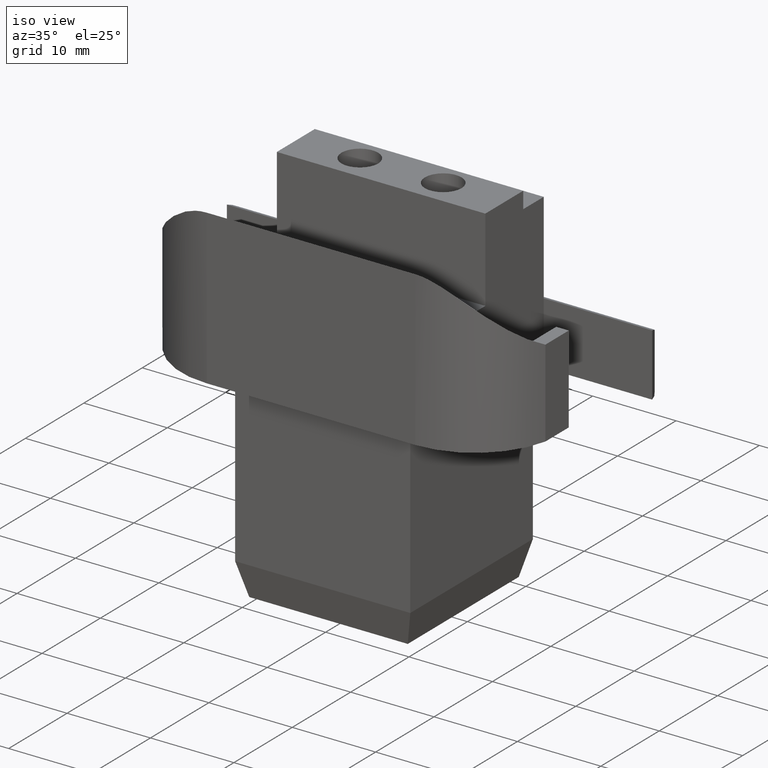
[diagram: clean part render]
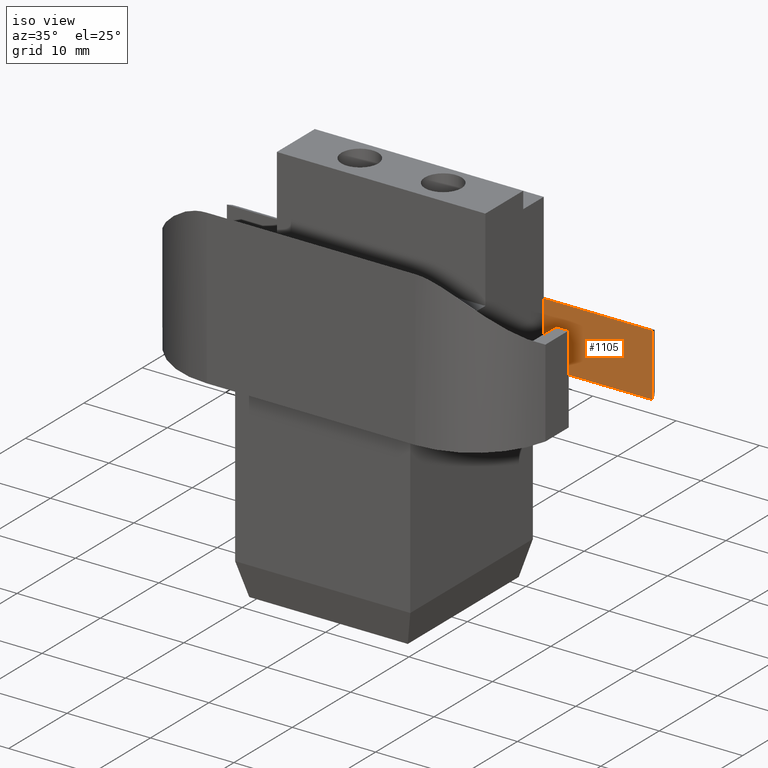
[diagram: same view with one face highlighted and labeled with its STEP entity id]
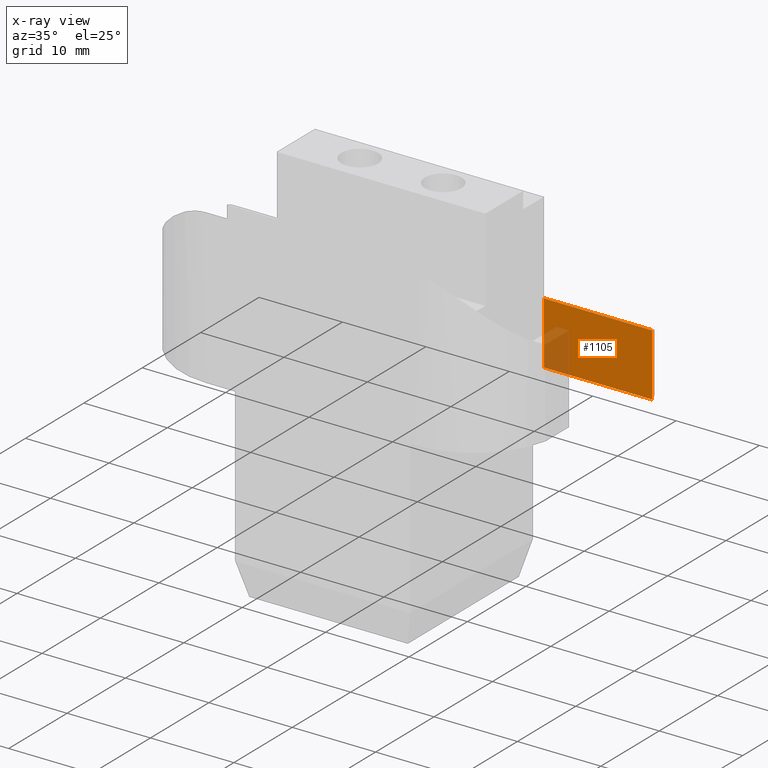
[diagram: x-ray of the same camera — body ghosted, the highlighted face saturated]
A machine part, iso view. The second image highlights one B-rep face of the part: STEP entity #1105.
The next image is the same camera in x-ray: the body ghosted, the highlighted face saturated — about 14% of this face is hidden behind the body in this view.
In plain terms, the highlighted planar face has unit normal (0, -1, 0).
Its self-contained STEP definition (entity closure, byte-faithful):
#133=FACE_OUTER_BOUND('',#201,.T.);
#201=EDGE_LOOP('',(#994,#995,#996,#997));
#268=LINE('',#1690,#388);
#270=LINE('',#1696,#390);
#286=LINE('',#1735,#406);
#308=LINE('',#1807,#428);
#388=VECTOR('',#1362,7.5);
#390=VECTOR('',#1368,13.);
#406=VECTOR('',#1404,7.5);
#428=VECTOR('',#1456,13.);
#500=VERTEX_POINT('',#1683);
#503=VERTEX_POINT('',#1688);
#505=VERTEX_POINT('',#1694);
#518=VERTEX_POINT('',#1733);
#628=EDGE_CURVE('',#503,#500,#268,.T.);
#631=EDGE_CURVE('',#505,#503,#270,.T.);
#651=EDGE_CURVE('',#518,#505,#286,.T.);
#678=EDGE_CURVE('',#500,#518,#308,.T.);
#994=ORIENTED_EDGE('',*,*,#631,.F.);
#995=ORIENTED_EDGE('',*,*,#651,.F.);
#996=ORIENTED_EDGE('',*,*,#678,.F.);
#997=ORIENTED_EDGE('',*,*,#628,.F.);
#1045=PLANE('',#1195);
#1105=ADVANCED_FACE('',(#133),#1045,.T.);
#1195=AXIS2_PLACEMENT_3D('',#1862,#1490,#1491);
#1362=DIRECTION('',(0.,0.,-1.));
#1368=DIRECTION('',(1.,0.,0.));
#1404=DIRECTION('',(0.,0.,1.));
#1456=DIRECTION('',(-1.,0.,0.));
#1490=DIRECTION('center_axis',(0.,-1.,0.));
#1491=DIRECTION('ref_axis',(-1.,0.,0.));
#1683=CARTESIAN_POINT('',(25.5,9.5,11.75));
#1688=CARTESIAN_POINT('',(25.5,9.5,19.25));
#1690=CARTESIAN_POINT('',(25.5,9.5,19.25));
#1694=CARTESIAN_POINT('',(12.5,9.5,19.25));
#1696=CARTESIAN_POINT('',(12.5,9.5,19.25));
#1733=CARTESIAN_POINT('',(12.5,9.5,11.75));
#1735=CARTESIAN_POINT('',(12.5,9.5,15.5));
#1807=CARTESIAN_POINT('',(12.5,9.5,11.75));
#1862=CARTESIAN_POINT('Origin',(25.5,9.5,19.25));